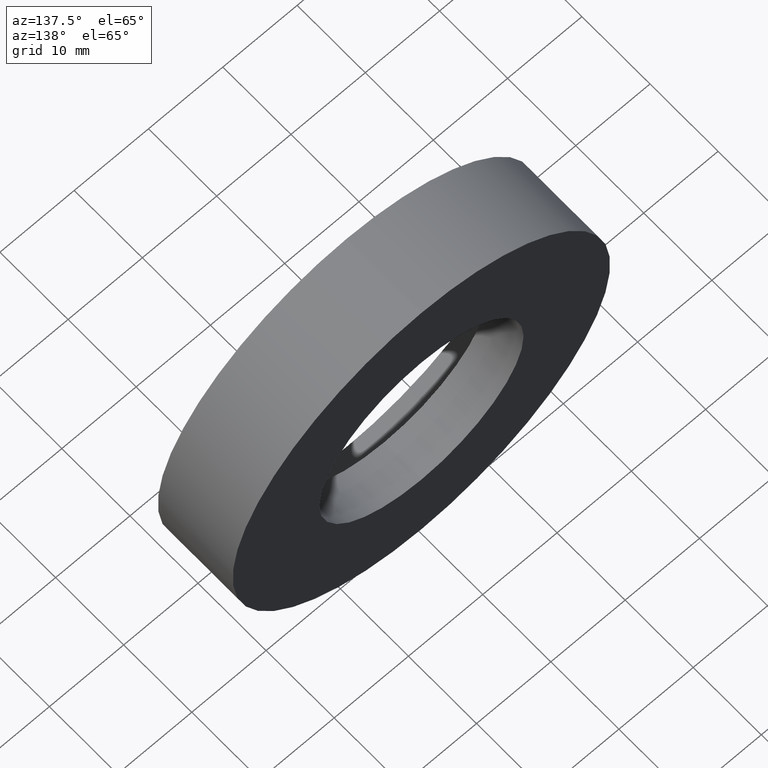
[diagram: clean part render]
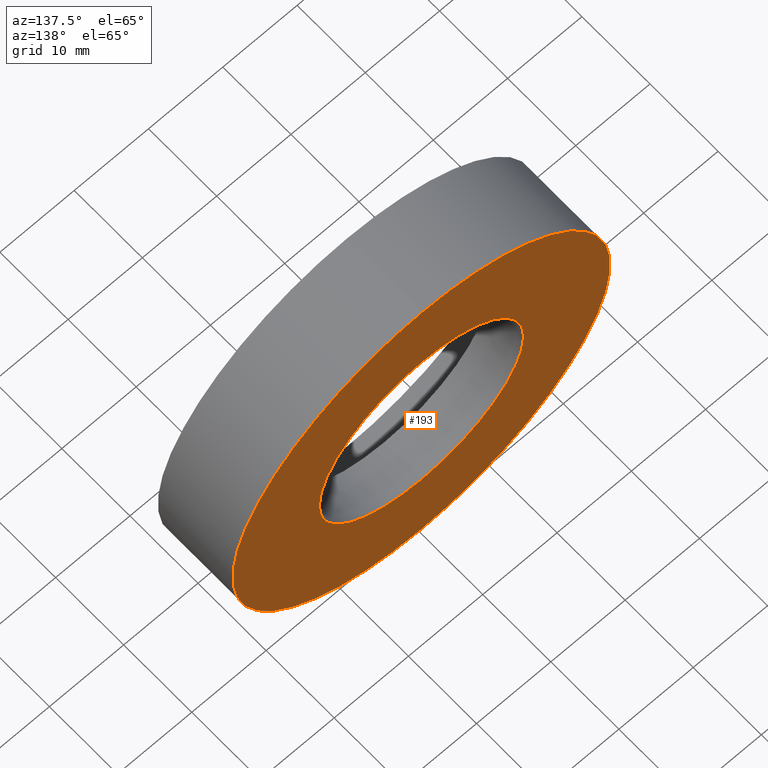
[diagram: same view with one face highlighted and labeled with its STEP entity id]
A machine part, auxiliary view. The second image highlights one B-rep face of the part: STEP entity #193.
In plain terms, the highlighted planar face has unit normal (0, -1, 0).
Its self-contained STEP definition (entity closure, byte-faithful):
#5 = CARTESIAN_POINT ( 'NONE',  ( 3.110602869834277300E-015, 10.99999999999999600, -25.40000000000000200 ) ) ;
#10 = ORIENTED_EDGE ( 'NONE', *, *, #16, .T. ) ;
#14 = DIRECTION ( 'NONE',  ( -0.0000000000000000000, 1.000000000000000000, -0.0000000000000000000 ) ) ;
#16 = EDGE_CURVE ( 'NONE', #160, #434, #119, .T. ) ;
#17 = CIRCLE ( 'NONE', #391, 25.40000000000000200 ) ;
#34 = EDGE_LOOP ( 'NONE', ( #10, #179 ) ) ;
#40 = DIRECTION ( 'NONE',  ( 0.0000000000000000000, 0.0000000000000000000, 1.000000000000000000 ) ) ;
#41 = ORIENTED_EDGE ( 'NONE', *, *, #270, .F. ) ;
#43 = FACE_BOUND ( 'NONE', #363, .T. ) ;
#46 = ORIENTED_EDGE ( 'NONE', *, *, #185, .F. ) ;
#54 = CARTESIAN_POINT ( 'NONE',  ( 0.0000000000000000000, 10.99999999999999600, 25.40000000000000200 ) ) ;
#60 = EDGE_CURVE ( 'NONE', #434, #160, #17, .T. ) ;
#84 = VERTEX_POINT ( 'NONE', #353 ) ;
#103 = DIRECTION ( 'NONE',  ( 0.0000000000000000000, 0.0000000000000000000, 1.000000000000000000 ) ) ;
#118 = DIRECTION ( 'NONE',  ( 0.0000000000000000000, -0.0000000000000000000, -1.000000000000000000 ) ) ;
#119 = CIRCLE ( 'NONE', #384, 25.40000000000000200 ) ;
#140 = FACE_OUTER_BOUND ( 'NONE', #34, .T. ) ;
#160 = VERTEX_POINT ( 'NONE', #54 ) ;
#179 = ORIENTED_EDGE ( 'NONE', *, *, #60, .T. ) ;
#180 = AXIS2_PLACEMENT_3D ( 'NONE', #321, #183, #40 ) ;
#183 = DIRECTION ( 'NONE',  ( -0.0000000000000000000, 1.000000000000000000, -0.0000000000000000000 ) ) ;
#185 = EDGE_CURVE ( 'NONE', #335, #84, #387, .T. ) ;
#186 = PLANE ( 'NONE',  #410 ) ;
#193 = ADVANCED_FACE ( 'NONE', ( #43, #140 ), #186, .F. ) ;
#198 = DIRECTION ( 'NONE',  ( 0.0000000000000000000, 0.0000000000000000000, 1.000000000000000000 ) ) ;
#210 = DIRECTION ( 'NONE',  ( -0.0000000000000000000, 1.000000000000000000, -0.0000000000000000000 ) ) ;
#231 = AXIS2_PLACEMENT_3D ( 'NONE', #428, #402, #404 ) ;
#261 = CARTESIAN_POINT ( 'NONE',  ( 0.0000000000000000000, 10.99999999999999600, 13.75000000000000700 ) ) ;
#270 = EDGE_CURVE ( 'NONE', #84, #335, #356, .T. ) ;
#321 = CARTESIAN_POINT ( 'NONE',  ( 0.0000000000000000000, 10.99999999999999600, 0.0000000000000000000 ) ) ;
#335 = VERTEX_POINT ( 'NONE', #261 ) ;
#336 = CARTESIAN_POINT ( 'NONE',  ( 13.75000000000000700, 10.99999999999999800, 0.0000000000000000000 ) ) ;
#353 = CARTESIAN_POINT ( 'NONE',  ( 1.683889348827611800E-015, 10.99999999999999600, -13.75000000000000900 ) ) ;
#356 = CIRCLE ( 'NONE', #231, 13.75000000000000700 ) ;
#361 = DIRECTION ( 'NONE',  ( 0.0000000000000000000, -1.000000000000000000, 0.0000000000000000000 ) ) ;
#363 = EDGE_LOOP ( 'NONE', ( #46, #41 ) ) ;
#369 = CARTESIAN_POINT ( 'NONE',  ( 0.0000000000000000000, 10.99999999999999600, 0.0000000000000000000 ) ) ;
#384 = AXIS2_PLACEMENT_3D ( 'NONE', #369, #210, #103 ) ;
#387 = CIRCLE ( 'NONE', #180, 13.75000000000000700 ) ;
#391 = AXIS2_PLACEMENT_3D ( 'NONE', #392, #14, #198 ) ;
#392 = CARTESIAN_POINT ( 'NONE',  ( 0.0000000000000000000, 10.99999999999999600, 0.0000000000000000000 ) ) ;
#402 = DIRECTION ( 'NONE',  ( -0.0000000000000000000, 1.000000000000000000, -0.0000000000000000000 ) ) ;
#404 = DIRECTION ( 'NONE',  ( 0.0000000000000000000, 0.0000000000000000000, 1.000000000000000000 ) ) ;
#410 = AXIS2_PLACEMENT_3D ( 'NONE', #336, #361, #118 ) ;
#428 = CARTESIAN_POINT ( 'NONE',  ( 0.0000000000000000000, 10.99999999999999600, 0.0000000000000000000 ) ) ;
#434 = VERTEX_POINT ( 'NONE', #5 ) ;